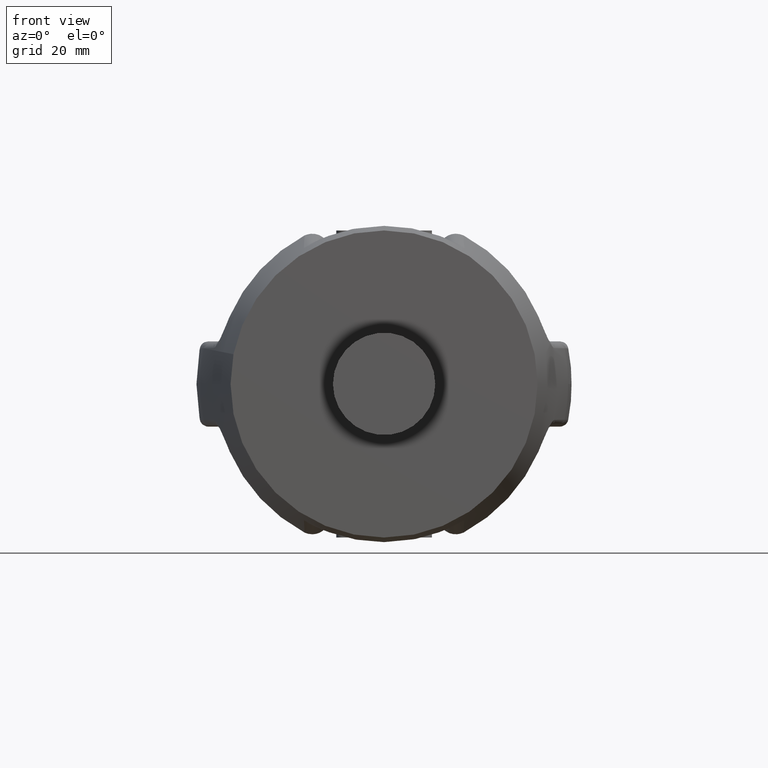
[diagram: clean part render]
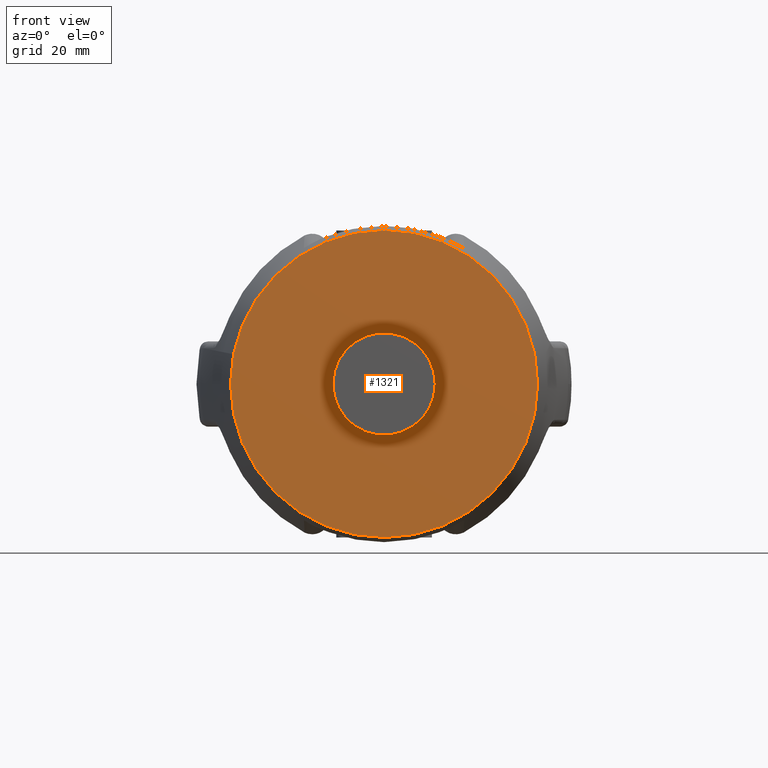
[diagram: same view with one face highlighted and labeled with its STEP entity id]
A machine part, front view. The second image highlights one B-rep face of the part: STEP entity #1321.
In plain terms, the highlighted planar face has unit normal (0, 1, 0).
Its self-contained STEP definition (entity closure, byte-faithful):
#1321=ADVANCED_FACE('',(#1769,#1770),#1557,.F.);
#1557=PLANE('',#5158);
#1689=CIRCLE('',#5156,45.0000000000001);
#1690=CIRCLE('',#5157,15.);
#1769=FACE_BOUND('',#1834,.T.);
#1770=FACE_BOUND('',#1835,.T.);
#1834=EDGE_LOOP('',(#2851));
#1835=EDGE_LOOP('',(#2852));
#2851=ORIENTED_EDGE('',*,*,#4407,.F.);
#2852=ORIENTED_EDGE('',*,*,#4408,.T.);
#4011=VERTEX_POINT('',#6893);
#4012=VERTEX_POINT('',#6895);
#4407=EDGE_CURVE('',#4011,#4011,#1689,.T.);
#4408=EDGE_CURVE('',#4012,#4012,#1690,.T.);
#5156=AXIS2_PLACEMENT_3D('',#6892,#5531,#5532);
#5157=AXIS2_PLACEMENT_3D('',#6894,#5533,#5534);
#5158=AXIS2_PLACEMENT_3D('',#6896,#5535,#5536);
#5531=DIRECTION('',(0.,1.,0.));
#5532=DIRECTION('',(0.,0.,1.));
#5533=DIRECTION('',(0.,1.,0.));
#5534=DIRECTION('',(1.,0.,6.12323399573677E-17));
#5535=DIRECTION('',(0.,1.,0.));
#5536=DIRECTION('',(0.,0.,1.));
#6892=CARTESIAN_POINT('',(-1.27403500852703E-13,0.,1.32878416315951E-14));
#6893=CARTESIAN_POINT('',(-1.27403500852703E-13,0.,45.0000000000002));
#6894=CARTESIAN_POINT('',(0.,0.,0.));
#6895=CARTESIAN_POINT('',(15.,0.,9.18485099360515E-16));
#6896=CARTESIAN_POINT('',(0.,0.,0.));